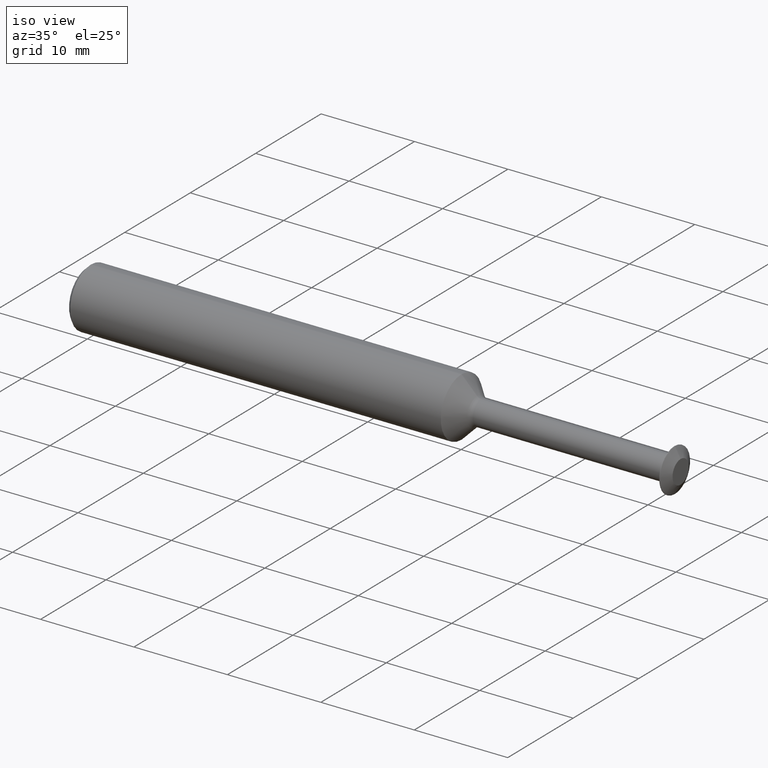
[diagram: clean part render]
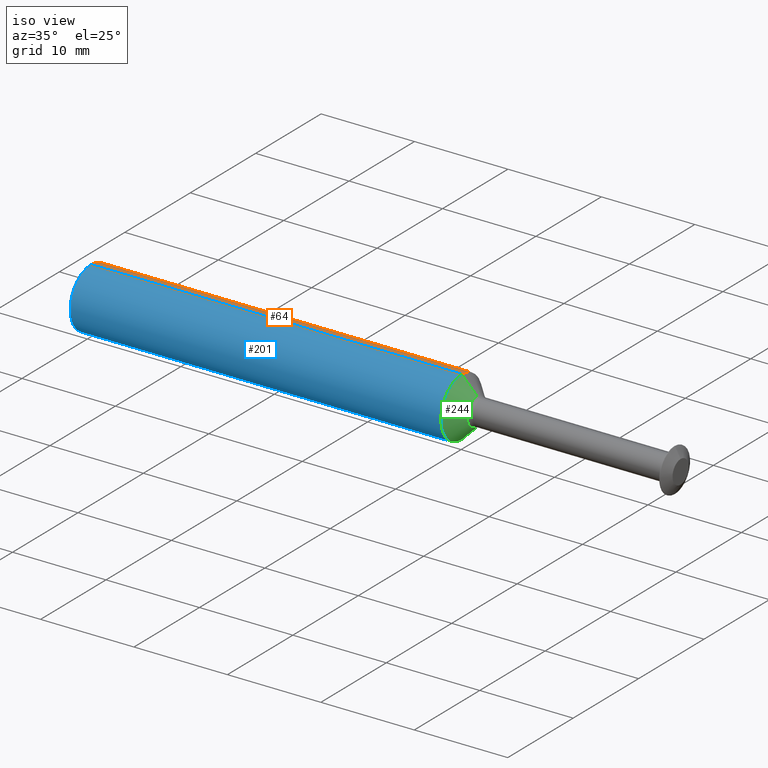
[diagram: same view with three faces highlighted in distinct colors, each labeled with its STEP entity id]
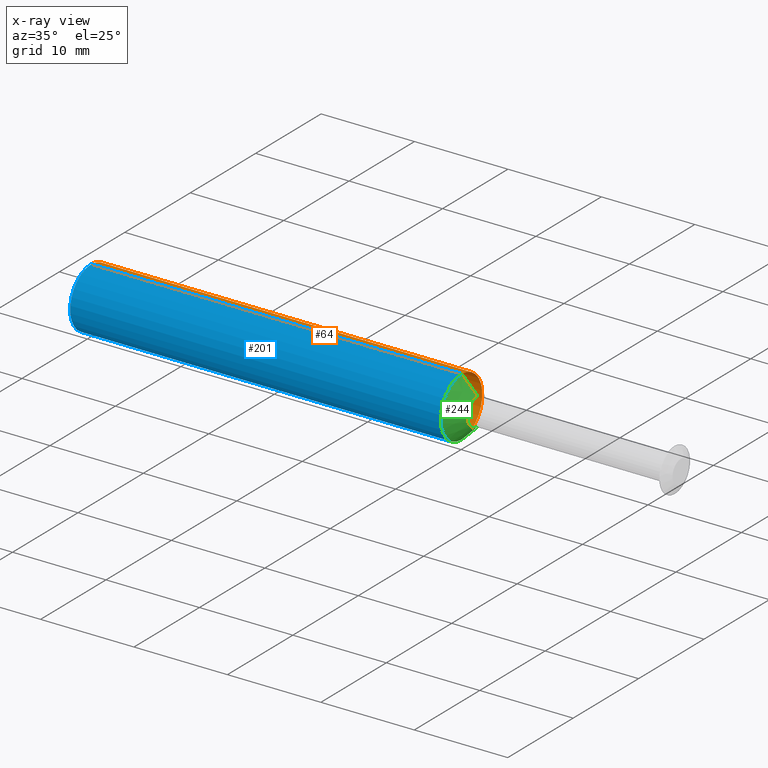
[diagram: x-ray of the same camera — body ghosted, the three highlighted faces saturated]
A machine part, iso view with three faces highlighted in distinct colors.
The next image is the same camera in x-ray (body ghosted, the three faces saturated) — at least one of them is partly hidden behind the body in this view.
Their STEP definitions:

[orange] entity #64 — the highlighted cylindrical surface (edge-blend (fillet) strip) has radius 3.1712 mm, axis along (-1, -0, -0).
#9 = CARTESIAN_POINT ( 'NONE',  ( 0.0000000000000000000, 0.0000000000000000000, 0.0000000000000000000 ) ) ;
#13 = EDGE_LOOP ( 'NONE', ( #145, #32, #345, #467 ) ) ;
#25 = CIRCLE ( 'NONE', #489, 0.1248500000000000026 ) ;
#32 = ORIENTED_EDGE ( 'NONE', *, *, #370, .T. ) ;
#36 = VECTOR ( 'NONE', #207, 39.37007874015748143 ) ;
#47 = VERTEX_POINT ( 'NONE', #483 ) ;
#64 = ADVANCED_FACE ( 'NONE', ( #299 ), #499, .T. ) ;
#83 = CARTESIAN_POINT ( 'NONE',  ( 1.576797675422181300, 0.0000000000000000000, 0.0000000000000000000 ) ) ;
#120 = DIRECTION ( 'NONE',  ( 0.0000000000000000000, 0.0000000000000000000, 1.000000000000000000 ) ) ;
#145 = ORIENTED_EDGE ( 'NONE', *, *, #448, .T. ) ;
#157 = DIRECTION ( 'NONE',  ( -1.000000000000000000, -0.0000000000000000000, -0.0000000000000000000 ) ) ;
#207 = DIRECTION ( 'NONE',  ( -1.000000000000000000, -0.0000000000000000000, -0.0000000000000000000 ) ) ;
#220 = VERTEX_POINT ( 'NONE', #350 ) ;
#228 = LINE ( 'NONE', #268, #258 ) ;
#240 = DIRECTION ( 'NONE',  ( -1.000000000000000000, -0.0000000000000000000, -0.0000000000000000000 ) ) ;
#246 = DIRECTION ( 'NONE',  ( 0.0000000000000000000, 0.0000000000000000000, 1.000000000000000000 ) ) ;
#253 = CARTESIAN_POINT ( 'NONE',  ( 1.576797675422181300, 0.0000000000000000000, 0.1248500000000000026 ) ) ;
#258 = VECTOR ( 'NONE', #294, 39.37007874015748143 ) ;
#268 = CARTESIAN_POINT ( 'NONE',  ( 0.0000000000000000000, 0.0000000000000000000, 0.1248500000000000026 ) ) ;
#294 = DIRECTION ( 'NONE',  ( -1.000000000000000000, -0.0000000000000000000, -0.0000000000000000000 ) ) ;
#299 = FACE_OUTER_BOUND ( 'NONE', #13, .T. ) ;
#320 = VERTEX_POINT ( 'NONE', #253 ) ;
#339 = AXIS2_PLACEMENT_3D ( 'NONE', #9, #157, #120 ) ;
#345 = ORIENTED_EDGE ( 'NONE', *, *, #498, .T. ) ;
#350 = CARTESIAN_POINT ( 'NONE',  ( 0.01500000000000024925, 1.528971528735470422E-17, -0.1248500000000000026 ) ) ;
#353 = CARTESIAN_POINT ( 'NONE',  ( 0.01500000000000024925, 0.0000000000000000000, 0.0000000000000000000 ) ) ;
#355 = DIRECTION ( 'NONE',  ( 1.000000000000000000, 0.0000000000000000000, 0.0000000000000000000 ) ) ;
#360 = DIRECTION ( 'NONE',  ( 0.0000000000000000000, 0.0000000000000000000, -1.000000000000000000 ) ) ;
#370 = EDGE_CURVE ( 'NONE', #387, #220, #417, .T. ) ;
#387 = VERTEX_POINT ( 'NONE', #484 ) ;
#403 = CARTESIAN_POINT ( 'NONE',  ( 0.0000000000000000000, 1.528971528735470422E-17, -0.1248500000000000026 ) ) ;
#414 = AXIS2_PLACEMENT_3D ( 'NONE', #353, #355, #360 ) ;
#417 = LINE ( 'NONE', #403, #36 ) ;
#448 = EDGE_CURVE ( 'NONE', #320, #387, #25, .T. ) ;
#453 = CIRCLE ( 'NONE', #414, 0.1248500000000000026 ) ;
#467 = ORIENTED_EDGE ( 'NONE', *, *, #473, .F. ) ;
#473 = EDGE_CURVE ( 'NONE', #320, #47, #228, .T. ) ;
#483 = CARTESIAN_POINT ( 'NONE',  ( 0.01500000000000024925, 0.0000000000000000000, 0.1248500000000000026 ) ) ;
#484 = CARTESIAN_POINT ( 'NONE',  ( 1.576797675422181300, 1.528971528735470422E-17, -0.1248500000000000026 ) ) ;
#489 = AXIS2_PLACEMENT_3D ( 'NONE', #83, #240, #246 ) ;
#498 = EDGE_CURVE ( 'NONE', #220, #47, #453, .T. ) ;
#499 = CYLINDRICAL_SURFACE ( 'NONE', #339, 0.1248500000000000026 ) ;

[blue] entity #201 — the highlighted cylindrical surface (edge-blend (fillet) strip) has radius 3.1712 mm, axis along (-1, -0, -0).
#4 = CIRCLE ( 'NONE', #393, 0.1248500000000000026 ) ;
#23 = ORIENTED_EDGE ( 'NONE', *, *, #375, .T. ) ;
#36 = VECTOR ( 'NONE', #207, 39.37007874015748143 ) ;
#46 = EDGE_LOOP ( 'NONE', ( #84, #351, #98, #23 ) ) ;
#47 = VERTEX_POINT ( 'NONE', #483 ) ;
#84 = ORIENTED_EDGE ( 'NONE', *, *, #370, .F. ) ;
#89 = DIRECTION ( 'NONE',  ( 0.0000000000000000000, 0.0000000000000000000, 1.000000000000000000 ) ) ;
#98 = ORIENTED_EDGE ( 'NONE', *, *, #473, .T. ) ;
#143 = CARTESIAN_POINT ( 'NONE',  ( 0.01500000000000024925, 0.0000000000000000000, 0.0000000000000000000 ) ) ;
#201 = ADVANCED_FACE ( 'NONE', ( #408 ), #381, .T. ) ;
#207 = DIRECTION ( 'NONE',  ( -1.000000000000000000, -0.0000000000000000000, -0.0000000000000000000 ) ) ;
#220 = VERTEX_POINT ( 'NONE', #350 ) ;
#228 = LINE ( 'NONE', #268, #258 ) ;
#235 = AXIS2_PLACEMENT_3D ( 'NONE', #272, #331, #89 ) ;
#252 = CARTESIAN_POINT ( 'NONE',  ( 1.576797675422181300, 0.0000000000000000000, 0.0000000000000000000 ) ) ;
#253 = CARTESIAN_POINT ( 'NONE',  ( 1.576797675422181300, 0.0000000000000000000, 0.1248500000000000026 ) ) ;
#258 = VECTOR ( 'NONE', #294, 39.37007874015748143 ) ;
#259 = DIRECTION ( 'NONE',  ( -1.000000000000000000, -0.0000000000000000000, -0.0000000000000000000 ) ) ;
#262 = DIRECTION ( 'NONE',  ( 0.0000000000000000000, 0.0000000000000000000, 1.000000000000000000 ) ) ;
#268 = CARTESIAN_POINT ( 'NONE',  ( 0.0000000000000000000, 0.0000000000000000000, 0.1248500000000000026 ) ) ;
#272 = CARTESIAN_POINT ( 'NONE',  ( 0.0000000000000000000, 0.0000000000000000000, 0.0000000000000000000 ) ) ;
#273 = DIRECTION ( 'NONE',  ( 1.000000000000000000, 0.0000000000000000000, 0.0000000000000000000 ) ) ;
#294 = DIRECTION ( 'NONE',  ( -1.000000000000000000, -0.0000000000000000000, -0.0000000000000000000 ) ) ;
#320 = VERTEX_POINT ( 'NONE', #253 ) ;
#331 = DIRECTION ( 'NONE',  ( -1.000000000000000000, -0.0000000000000000000, -0.0000000000000000000 ) ) ;
#350 = CARTESIAN_POINT ( 'NONE',  ( 0.01500000000000024925, 1.528971528735470422E-17, -0.1248500000000000026 ) ) ;
#351 = ORIENTED_EDGE ( 'NONE', *, *, #456, .T. ) ;
#370 = EDGE_CURVE ( 'NONE', #387, #220, #417, .T. ) ;
#375 = EDGE_CURVE ( 'NONE', #47, #220, #4, .T. ) ;
#381 = CYLINDRICAL_SURFACE ( 'NONE', #235, 0.1248500000000000026 ) ;
#387 = VERTEX_POINT ( 'NONE', #484 ) ;
#391 = DIRECTION ( 'NONE',  ( 0.0000000000000000000, 0.0000000000000000000, -1.000000000000000000 ) ) ;
#393 = AXIS2_PLACEMENT_3D ( 'NONE', #143, #273, #391 ) ;
#403 = CARTESIAN_POINT ( 'NONE',  ( 0.0000000000000000000, 1.528971528735470422E-17, -0.1248500000000000026 ) ) ;
#408 = FACE_OUTER_BOUND ( 'NONE', #46, .T. ) ;
#417 = LINE ( 'NONE', #403, #36 ) ;
#456 = EDGE_CURVE ( 'NONE', #387, #320, #497, .T. ) ;
#473 = EDGE_CURVE ( 'NONE', #320, #47, #228, .T. ) ;
#474 = AXIS2_PLACEMENT_3D ( 'NONE', #252, #259, #262 ) ;
#483 = CARTESIAN_POINT ( 'NONE',  ( 0.01500000000000024925, 0.0000000000000000000, 0.1248500000000000026 ) ) ;
#484 = CARTESIAN_POINT ( 'NONE',  ( 1.576797675422181300, 1.528971528735470422E-17, -0.1248500000000000026 ) ) ;
#497 = CIRCLE ( 'NONE', #474, 0.1248500000000000026 ) ;

[green] entity #244 — the highlighted conical surface has half-angle 45 deg.
#14 = CARTESIAN_POINT ( 'NONE',  ( 1.642325344951844901, 7.264890212845911207E-18, -0.05932233047033651924 ) ) ;
#21 = DIRECTION ( 'NONE',  ( -1.000000000000000000, -0.0000000000000000000, -0.0000000000000000000 ) ) ;
#42 = ORIENTED_EDGE ( 'NONE', *, *, #456, .F. ) ;
#50 = DIRECTION ( 'NONE',  ( -0.7071067811865482389, 8.659560562354925463E-17, -0.7071067811865469066 ) ) ;
#54 = CARTESIAN_POINT ( 'NONE',  ( 1.642325344951844901, 7.264890212845898881E-18, -0.05932233047033641515 ) ) ;
#58 = ORIENTED_EDGE ( 'NONE', *, *, #217, .T. ) ;
#81 = DIRECTION ( 'NONE',  ( -1.000000000000000000, -0.0000000000000000000, -0.0000000000000000000 ) ) ;
#96 = VERTEX_POINT ( 'NONE', #54 ) ;
#117 = CARTESIAN_POINT ( 'NONE',  ( 1.642325344951844901, 0.0000000000000000000, 0.05932233047033641515 ) ) ;
#137 = LINE ( 'NONE', #14, #204 ) ;
#168 = CONICAL_SURFACE ( 'NONE', #199, 0.05932233047033651924, 0.7853981633974473908 ) ;
#199 = AXIS2_PLACEMENT_3D ( 'NONE', #341, #81, #308 ) ;
#204 = VECTOR ( 'NONE', #50, 39.37007874015748143 ) ;
#210 = DIRECTION ( 'NONE',  ( 0.0000000000000000000, 0.0000000000000000000, 1.000000000000000000 ) ) ;
#217 = EDGE_CURVE ( 'NONE', #96, #279, #270, .T. ) ;
#244 = ADVANCED_FACE ( 'NONE', ( #256 ), #168, .T. ) ;
#252 = CARTESIAN_POINT ( 'NONE',  ( 1.576797675422181300, 0.0000000000000000000, 0.0000000000000000000 ) ) ;
#253 = CARTESIAN_POINT ( 'NONE',  ( 1.576797675422181300, 0.0000000000000000000, 0.1248500000000000026 ) ) ;
#256 = FACE_OUTER_BOUND ( 'NONE', #394, .T. ) ;
#259 = DIRECTION ( 'NONE',  ( -1.000000000000000000, -0.0000000000000000000, -0.0000000000000000000 ) ) ;
#262 = DIRECTION ( 'NONE',  ( 0.0000000000000000000, 0.0000000000000000000, 1.000000000000000000 ) ) ;
#270 = CIRCLE ( 'NONE', #326, 0.05932233047033651924 ) ;
#279 = VERTEX_POINT ( 'NONE', #117 ) ;
#297 = LINE ( 'NONE', #478, #392 ) ;
#308 = DIRECTION ( 'NONE',  ( 0.0000000000000000000, 0.0000000000000000000, 1.000000000000000000 ) ) ;
#318 = CARTESIAN_POINT ( 'NONE',  ( 1.642325344951844901, 0.0000000000000000000, 0.0000000000000000000 ) ) ;
#320 = VERTEX_POINT ( 'NONE', #253 ) ;
#322 = EDGE_CURVE ( 'NONE', #96, #387, #137, .T. ) ;
#323 = ORIENTED_EDGE ( 'NONE', *, *, #322, .F. ) ;
#326 = AXIS2_PLACEMENT_3D ( 'NONE', #318, #21, #210 ) ;
#341 = CARTESIAN_POINT ( 'NONE',  ( 1.642325344951844901, 0.0000000000000000000, 0.0000000000000000000 ) ) ;
#346 = ORIENTED_EDGE ( 'NONE', *, *, #362, .T. ) ;
#362 = EDGE_CURVE ( 'NONE', #279, #320, #297, .T. ) ;
#387 = VERTEX_POINT ( 'NONE', #484 ) ;
#392 = VECTOR ( 'NONE', #442, 39.37007874015748143 ) ;
#394 = EDGE_LOOP ( 'NONE', ( #323, #58, #346, #42 ) ) ;
#442 = DIRECTION ( 'NONE',  ( -0.7071067811865482389, 0.0000000000000000000, 0.7071067811865469066 ) ) ;
#456 = EDGE_CURVE ( 'NONE', #387, #320, #497, .T. ) ;
#474 = AXIS2_PLACEMENT_3D ( 'NONE', #252, #259, #262 ) ;
#478 = CARTESIAN_POINT ( 'NONE',  ( 1.642325344951844901, 0.0000000000000000000, 0.05932233047033651924 ) ) ;
#484 = CARTESIAN_POINT ( 'NONE',  ( 1.576797675422181300, 1.528971528735470422E-17, -0.1248500000000000026 ) ) ;
#497 = CIRCLE ( 'NONE', #474, 0.1248500000000000026 ) ;